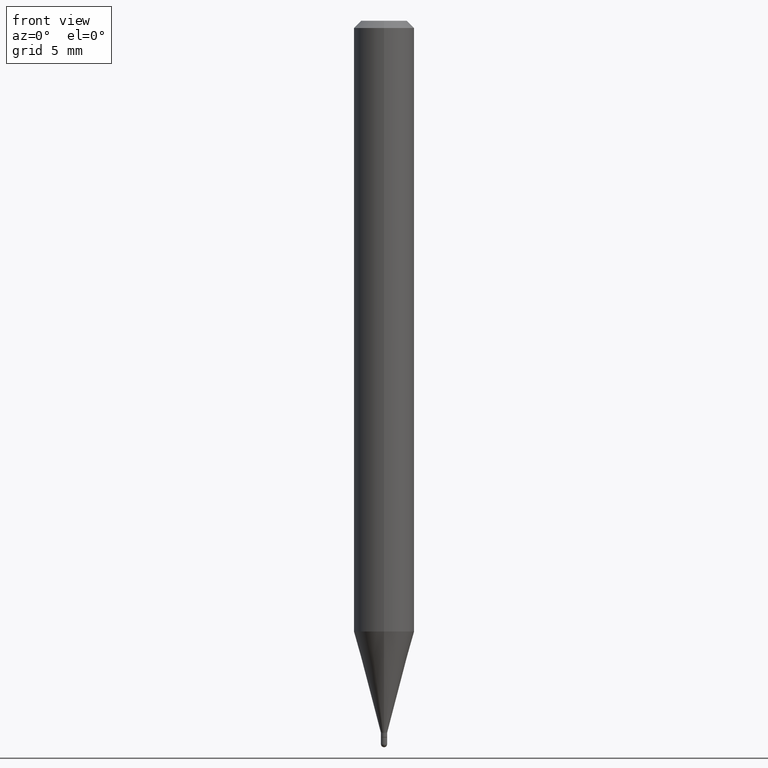
[diagram: clean part render]
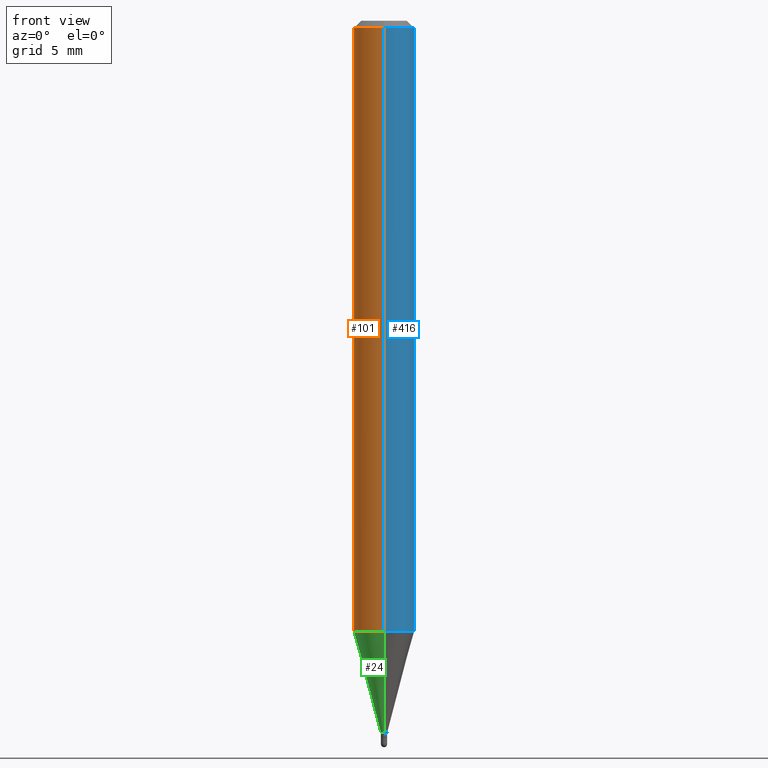
[diagram: same view with three faces highlighted in distinct colors, each labeled with its STEP entity id]
A machine part, front view with three faces highlighted in distinct colors.
Their STEP definitions:

[orange] entity #101 — the highlighted cylindrical surface (edge-blend (fillet) strip) has radius 1.5875 mm, axis along (-0, 0, 1).
#3 = LINE ( 'NONE', #150, #250 ) ;
#33 = LINE ( 'NONE', #380, #123 ) ;
#34 = AXIS2_PLACEMENT_3D ( 'NONE', #429, #50, #111 ) ;
#37 = DIRECTION ( 'NONE',  ( -2.445466135731447109E-29, 3.491485163084821978E-15, 1.000000000000000000 ) ) ;
#39 = DIRECTION ( 'NONE',  ( -6.982962677686265922E-15, -1.000000000000000000, 4.370956789862821150E-15 ) ) ;
#50 = DIRECTION ( 'NONE',  ( -2.445466135731446828E-29, 3.491485163084822372E-15, 1.000000000000000000 ) ) ;
#83 = VERTEX_POINT ( 'NONE', #133 ) ;
#97 = DIRECTION ( 'NONE',  ( -2.445466135731446828E-29, 3.491485163084822372E-15, 1.000000000000000000 ) ) ;
#99 = CARTESIAN_POINT ( 'NONE',  ( -4.364351673553608545E-16, -0.06250000000000439926, -1.261005154776142723 ) ) ;
#101 = ADVANCED_FACE ( 'NONE', ( #493 ), #134, .T. ) ;
#111 = DIRECTION ( 'NONE',  ( -6.982962677686265922E-15, -1.000000000000000000, 3.483106191921935554E-15 ) ) ;
#123 = VECTOR ( 'NONE', #37, 39.37007874015748143 ) ;
#133 = CARTESIAN_POINT ( 'NONE',  ( 4.440892098500935790E-16, 0.06249999999999995143, -0.01499999999999997863 ) ) ;
#134 = CYLINDRICAL_SURFACE ( 'NONE', #302, 0.06250000000000000000 ) ;
#140 = CARTESIAN_POINT ( 'NONE',  ( 4.440892098500932831E-16, 0.06249999999999557992, -1.261005154776143389 ) ) ;
#150 = CARTESIAN_POINT ( 'NONE',  ( 4.440892098500625669E-16, 0.06250000000000000000, -2.182178226928013983E-16 ) ) ;
#151 = ORIENTED_EDGE ( 'NONE', *, *, #449, .F. ) ;
#152 = AXIS2_PLACEMENT_3D ( 'NONE', #270, #354, #39 ) ;
#159 = VERTEX_POINT ( 'NONE', #140 ) ;
#173 = DIRECTION ( 'NONE',  ( -2.445466135731447109E-29, 3.491485163084821978E-15, 1.000000000000000000 ) ) ;
#227 = VERTEX_POINT ( 'NONE', #99 ) ;
#249 = CIRCLE ( 'NONE', #34, 0.06250000000000000000 ) ;
#250 = VECTOR ( 'NONE', #173, 39.37007874015748143 ) ;
#251 = EDGE_CURVE ( 'NONE', #227, #465, #33, .T. ) ;
#252 = EDGE_LOOP ( 'NONE', ( #151, #504, #330, #347 ) ) ;
#256 = CIRCLE ( 'NONE', #152, 0.06250000000000000000 ) ;
#270 = CARTESIAN_POINT ( 'NONE',  ( 3.083745402987849892E-29, -4.402780788474383222E-15, -1.261005154776143167 ) ) ;
#290 = CARTESIAN_POINT ( 'NONE',  ( 0.000000000000000000, 0.000000000000000000, 0.000000000000000000 ) ) ;
#302 = AXIS2_PLACEMENT_3D ( 'NONE', #290, #97, #413 ) ;
#323 = EDGE_CURVE ( 'NONE', #159, #227, #256, .T. ) ;
#330 = ORIENTED_EDGE ( 'NONE', *, *, #251, .T. ) ;
#341 = EDGE_CURVE ( 'NONE', #83, #465, #249, .T. ) ;
#347 = ORIENTED_EDGE ( 'NONE', *, *, #341, .F. ) ;
#354 = DIRECTION ( 'NONE',  ( -2.445466135731446828E-29, 3.491485163084822372E-15, 1.000000000000000000 ) ) ;
#380 = CARTESIAN_POINT ( 'NONE',  ( -4.364351673553916201E-16, -0.06250000000000000000, 2.182178226928013983E-16 ) ) ;
#413 = DIRECTION ( 'NONE',  ( -6.982962677686265922E-15, -1.000000000000000000, 3.491485163084822372E-15 ) ) ;
#429 = CARTESIAN_POINT ( 'NONE',  ( 3.668199203597111441E-31, -5.237227744627150111E-17, -0.01499999999999976179 ) ) ;
#449 = EDGE_CURVE ( 'NONE', #159, #83, #3, .T. ) ;
#465 = VERTEX_POINT ( 'NONE', #483 ) ;
#483 = CARTESIAN_POINT ( 'NONE',  ( -4.364351673553912750E-16, -0.06250000000000005551, -0.01499999999999954321 ) ) ;
#493 = FACE_OUTER_BOUND ( 'NONE', #252, .T. ) ;
#504 = ORIENTED_EDGE ( 'NONE', *, *, #323, .T. ) ;

[blue] entity #416 — the highlighted cylindrical surface (edge-blend (fillet) strip) has radius 1.5875 mm, axis along (-0, 0, 1).
#1 = ORIENTED_EDGE ( 'NONE', *, *, #449, .T. ) ;
#3 = LINE ( 'NONE', #150, #250 ) ;
#18 = DIRECTION ( 'NONE',  ( -6.982962677686265922E-15, -1.000000000000000000, 3.483106191921935554E-15 ) ) ;
#21 = EDGE_CURVE ( 'NONE', #227, #159, #56, .T. ) ;
#33 = LINE ( 'NONE', #380, #123 ) ;
#37 = DIRECTION ( 'NONE',  ( -2.445466135731447109E-29, 3.491485163084821978E-15, 1.000000000000000000 ) ) ;
#56 = CIRCLE ( 'NONE', #278, 0.06250000000000000000 ) ;
#61 = DIRECTION ( 'NONE',  ( -2.445466135731446828E-29, 3.491485163084822372E-15, 1.000000000000000000 ) ) ;
#83 = VERTEX_POINT ( 'NONE', #133 ) ;
#92 = ORIENTED_EDGE ( 'NONE', *, *, #489, .F. ) ;
#99 = CARTESIAN_POINT ( 'NONE',  ( -4.364351673553608545E-16, -0.06250000000000439926, -1.261005154776142723 ) ) ;
#119 = FACE_OUTER_BOUND ( 'NONE', #308, .T. ) ;
#123 = VECTOR ( 'NONE', #37, 39.37007874015748143 ) ;
#133 = CARTESIAN_POINT ( 'NONE',  ( 4.440892098500935790E-16, 0.06249999999999995143, -0.01499999999999997863 ) ) ;
#140 = CARTESIAN_POINT ( 'NONE',  ( 4.440892098500932831E-16, 0.06249999999999557992, -1.261005154776143389 ) ) ;
#150 = CARTESIAN_POINT ( 'NONE',  ( 4.440892098500625669E-16, 0.06250000000000000000, -2.182178226928013983E-16 ) ) ;
#159 = VERTEX_POINT ( 'NONE', #140 ) ;
#173 = DIRECTION ( 'NONE',  ( -2.445466135731447109E-29, 3.491485163084821978E-15, 1.000000000000000000 ) ) ;
#205 = DIRECTION ( 'NONE',  ( -2.445466135731446828E-29, 3.491485163084822372E-15, 1.000000000000000000 ) ) ;
#206 = AXIS2_PLACEMENT_3D ( 'NONE', #284, #61, #18 ) ;
#227 = VERTEX_POINT ( 'NONE', #99 ) ;
#236 = DIRECTION ( 'NONE',  ( -2.445466135731446828E-29, 3.491485163084822372E-15, 1.000000000000000000 ) ) ;
#250 = VECTOR ( 'NONE', #173, 39.37007874015748143 ) ;
#251 = EDGE_CURVE ( 'NONE', #227, #465, #33, .T. ) ;
#278 = AXIS2_PLACEMENT_3D ( 'NONE', #488, #205, #496 ) ;
#284 = CARTESIAN_POINT ( 'NONE',  ( 3.668199203597111441E-31, -5.237227744627150111E-17, -0.01499999999999976179 ) ) ;
#287 = AXIS2_PLACEMENT_3D ( 'NONE', #473, #236, #314 ) ;
#295 = CIRCLE ( 'NONE', #206, 0.06250000000000000000 ) ;
#305 = CYLINDRICAL_SURFACE ( 'NONE', #287, 0.06250000000000000000 ) ;
#308 = EDGE_LOOP ( 'NONE', ( #443, #1, #92, #355 ) ) ;
#314 = DIRECTION ( 'NONE',  ( -6.982962677686265922E-15, -1.000000000000000000, 3.491485163084822372E-15 ) ) ;
#355 = ORIENTED_EDGE ( 'NONE', *, *, #251, .F. ) ;
#380 = CARTESIAN_POINT ( 'NONE',  ( -4.364351673553916201E-16, -0.06250000000000000000, 2.182178226928013983E-16 ) ) ;
#416 = ADVANCED_FACE ( 'NONE', ( #119 ), #305, .T. ) ;
#443 = ORIENTED_EDGE ( 'NONE', *, *, #21, .T. ) ;
#449 = EDGE_CURVE ( 'NONE', #159, #83, #3, .T. ) ;
#465 = VERTEX_POINT ( 'NONE', #483 ) ;
#473 = CARTESIAN_POINT ( 'NONE',  ( 0.000000000000000000, 0.000000000000000000, 0.000000000000000000 ) ) ;
#483 = CARTESIAN_POINT ( 'NONE',  ( -4.364351673553912750E-16, -0.06250000000000005551, -0.01499999999999954321 ) ) ;
#488 = CARTESIAN_POINT ( 'NONE',  ( 3.083745402987849892E-29, -4.402780788474383222E-15, -1.261005154776143167 ) ) ;
#489 = EDGE_CURVE ( 'NONE', #465, #83, #295, .T. ) ;
#496 = DIRECTION ( 'NONE',  ( -6.982962677686265922E-15, -1.000000000000000000, 4.370956789862821150E-15 ) ) ;

[green] entity #24 — the highlighted conical surface has half-angle 15 deg.
#17 = DIRECTION ( 'NONE',  ( -2.445466135731446828E-29, 3.491485163084822372E-15, 1.000000000000000000 ) ) ;
#19 = ORIENTED_EDGE ( 'NONE', *, *, #323, .F. ) ;
#24 = ADVANCED_FACE ( 'NONE', ( #325 ), #171, .T. ) ;
#39 = DIRECTION ( 'NONE',  ( -6.982962677686265922E-15, -1.000000000000000000, 4.370956789862821150E-15 ) ) ;
#65 = LINE ( 'NONE', #342, #179 ) ;
#70 = DIRECTION ( 'NONE',  ( -6.982962677686265133E-15, -1.000000000000000000, 0.000000000000000000 ) ) ;
#71 = VECTOR ( 'NONE', #221, 39.37007874015749564 ) ;
#90 = DIRECTION ( 'NONE',  ( -6.982962677686265133E-15, -1.000000000000000000, 0.000000000000000000 ) ) ;
#98 = CIRCLE ( 'NONE', #164, 0.006499999999999922506 ) ;
#99 = CARTESIAN_POINT ( 'NONE',  ( -4.364351673553608545E-16, -0.06250000000000439926, -1.261005154776142723 ) ) ;
#104 = DIRECTION ( 'NONE',  ( -2.445466135731446828E-29, 3.491485163084822372E-15, 1.000000000000000000 ) ) ;
#112 = EDGE_CURVE ( 'NONE', #393, #227, #301, .T. ) ;
#126 = EDGE_CURVE ( 'NONE', #348, #393, #98, .T. ) ;
#140 = CARTESIAN_POINT ( 'NONE',  ( 4.440892098500932831E-16, 0.06249999999999557992, -1.261005154776143389 ) ) ;
#152 = AXIS2_PLACEMENT_3D ( 'NONE', #270, #354, #39 ) ;
#159 = VERTEX_POINT ( 'NONE', #140 ) ;
#164 = AXIS2_PLACEMENT_3D ( 'NONE', #505, #104, #70 ) ;
#171 = CONICAL_SURFACE ( 'NONE', #414, 0.006499999999999922506, 0.2617993877991501295 ) ;
#179 = VECTOR ( 'NONE', #370, 39.37007874015747433 ) ;
#186 = CARTESIAN_POINT ( 'NONE',  ( 2.451372438372677661E-16, 0.006499999999994789460, -1.469999999999999973 ) ) ;
#197 = ORIENTED_EDGE ( 'NONE', *, *, #126, .T. ) ;
#200 = CARTESIAN_POINT ( 'NONE',  ( -4.538925740492423500E-17, -0.006500000000005055553, -1.469999999999999973 ) ) ;
#221 = DIRECTION ( 'NONE',  ( -1.807323732225328562E-15, -0.2588190451025179639, 0.9659258262890689783 ) ) ;
#227 = VERTEX_POINT ( 'NONE', #99 ) ;
#256 = CIRCLE ( 'NONE', #152, 0.06250000000000000000 ) ;
#270 = CARTESIAN_POINT ( 'NONE',  ( 3.083745402987849892E-29, -4.402780788474383222E-15, -1.261005154776143167 ) ) ;
#293 = EDGE_CURVE ( 'NONE', #348, #159, #65, .T. ) ;
#301 = LINE ( 'NONE', #331, #71 ) ;
#309 = ORIENTED_EDGE ( 'NONE', *, *, #293, .F. ) ;
#323 = EDGE_CURVE ( 'NONE', #159, #227, #256, .T. ) ;
#325 = FACE_OUTER_BOUND ( 'NONE', #511, .T. ) ;
#331 = CARTESIAN_POINT ( 'NONE',  ( -4.538925740492423500E-17, -0.006500000000005055553, -1.469999999999999973 ) ) ;
#342 = CARTESIAN_POINT ( 'NONE',  ( 4.618527782444190393E-17, 0.006499999999994789460, -1.469999999999999973 ) ) ;
#348 = VERTEX_POINT ( 'NONE', #186 ) ;
#354 = DIRECTION ( 'NONE',  ( -2.445466135731446828E-29, 3.491485163084822372E-15, 1.000000000000000000 ) ) ;
#370 = DIRECTION ( 'NONE',  ( 1.839019923739599526E-15, 0.2588190451025248473, 0.9659258262890673130 ) ) ;
#391 = ORIENTED_EDGE ( 'NONE', *, *, #112, .T. ) ;
#393 = VERTEX_POINT ( 'NONE', #200 ) ;
#407 = CARTESIAN_POINT ( 'NONE',  ( 3.594835219525226569E-29, -5.132483189734688276E-15, -1.469999999999999973 ) ) ;
#414 = AXIS2_PLACEMENT_3D ( 'NONE', #407, #17, #90 ) ;
#505 = CARTESIAN_POINT ( 'NONE',  ( 3.594835219525226569E-29, -5.132483189734688276E-15, -1.469999999999999973 ) ) ;
#511 = EDGE_LOOP ( 'NONE', ( #309, #197, #391, #19 ) ) ;